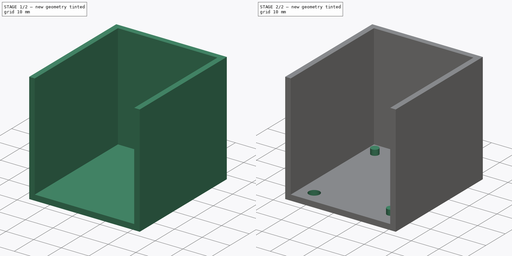
[diagram: build sequence overview — one tinted view per stage of 2, left to right]
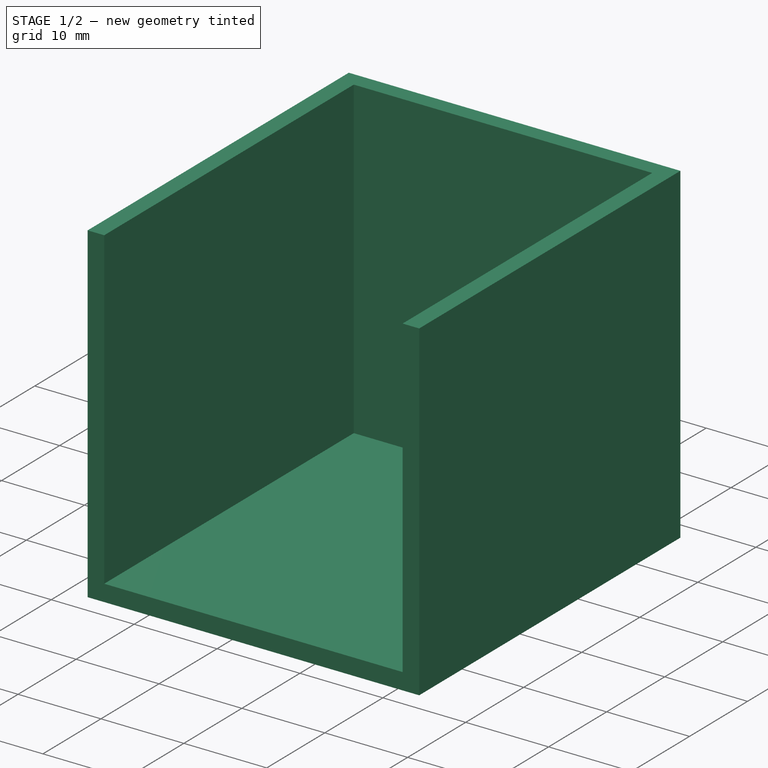
[diagram: stage 1 of 2 — iso view after this stage's code; geometry added in this stage tinted green]
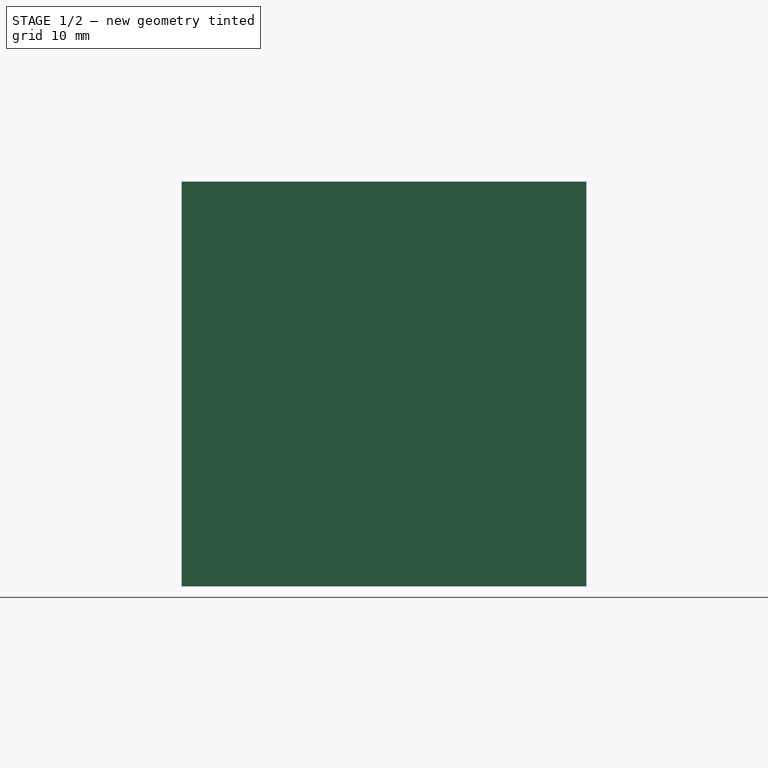
[diagram: stage 1 of 2 — front view after this stage's code; geometry added in this stage tinted green]
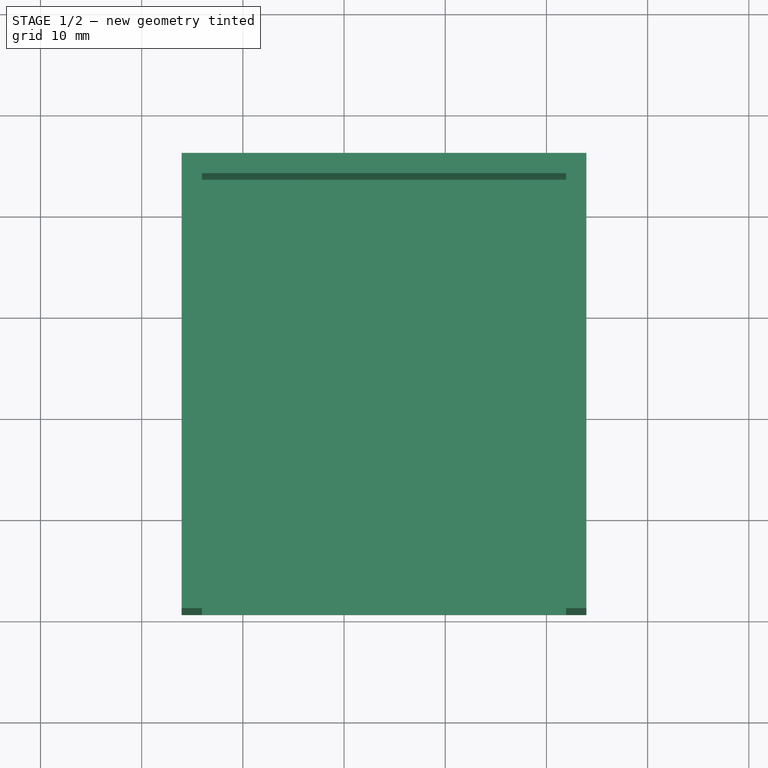
[diagram: stage 1 of 2 — top view after this stage's code; geometry added in this stage tinted green]
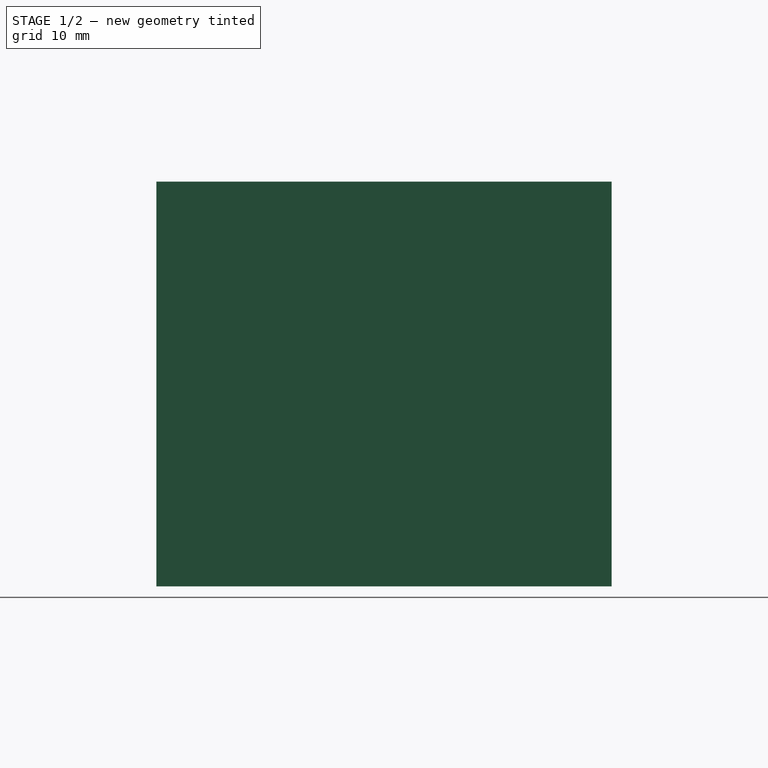
[diagram: stage 1 of 2 — right view after this stage's code; geometry added in this stage tinted green]
FCSTD DOCUMENT  (FreeCAD 0.16R6705 (Git))
Label: sensor_case
License: All rights reserved
LicenseURL: http://en.wikipedia.org/wiki/All_rights_reserved
objects: Sketcher::SketchObject×4, PartDesign::Pad×2, PartDesign::Pocket×2
note: 12 computed .brp shape members not serialized (recipe doc carries the construction recipe); baked Part::Feature solids carry a one-line shape summary decoded from their .brp

FEATURE [Sketcher::SketchObject] Sketch
  sketch-geometry (4):
    g0: LineSegment StartX=13.9465 StartY=45.6358 StartZ=0 EndX=53.9465 EndY=45.6358 EndZ=0
    g1: LineSegment StartX=53.9465 StartY=45.6358 StartZ=0 EndX=53.9465 EndY=0.635794 EndZ=0
    g2: LineSegment StartX=53.9465 StartY=0.635794 StartZ=0 EndX=13.9465 EndY=0.635794 EndZ=0
    g3: LineSegment StartX=13.9465 StartY=0.635794 StartZ=0 EndX=13.9465 EndY=45.6358 EndZ=0
  constraints (10):
    c: Coincident(g0,g1)
    c: Coincident(g1,g2)
    c: Coincident(g2,g3)
    c: Coincident(g3,g0)
    c: Horizontal(g0)
    c: Horizontal(g2)
    c: Vertical(g1)
    c: Vertical(g3)
    c: DistanceX(g0,g0) = 40
    c: DistanceY(g1,g1) = 45
FEATURE [PartDesign::Pad] Pad
  Length = 40
  Length2 = 100
  Sketch = -> Sketch
  Type = 0
FEATURE [Sketcher::SketchObject] Sketch001
  ExternalGeometry = -> [Pad]
  Placement = pos=(0,0,40) rot=(0,0,1;0rad)
  Support = -> Pad [Face6]
  sketch-geometry (4):
    g0: LineSegment StartX=15.9465 StartY=43.6358 StartZ=0 EndX=51.9465 EndY=43.6358 EndZ=0
    g1: LineSegment StartX=51.9465 StartY=43.6358 StartZ=0 EndX=51.9465 EndY=-2.42514 EndZ=0
    g2: LineSegment StartX=51.9465 StartY=-2.42514 StartZ=0 EndX=15.9465 EndY=-2.42514 EndZ=0
    g3: LineSegment StartX=15.9465 StartY=-2.42514 StartZ=0 EndX=15.9465 EndY=43.6358 EndZ=0
  constraints (11):
    c: Coincident(g0,g1)
    c: Coincident(g1,g2)
    c: Coincident(g2,g3)
    c: Coincident(g3,g0)
    c: Horizontal(g0)
    c: Horizontal(g2)
    c: Vertical(g1)
    c: Vertical(g3)
    c: DistanceY(g0,g-4) = 2
    c: DistanceX(g-4,g0) = 2
    c: DistanceX(g0,g-5) = 2
FEATURE [PartDesign::Pocket] Pocket
  Length = 38
  Sketch = -> Sketch001
  Type = 0
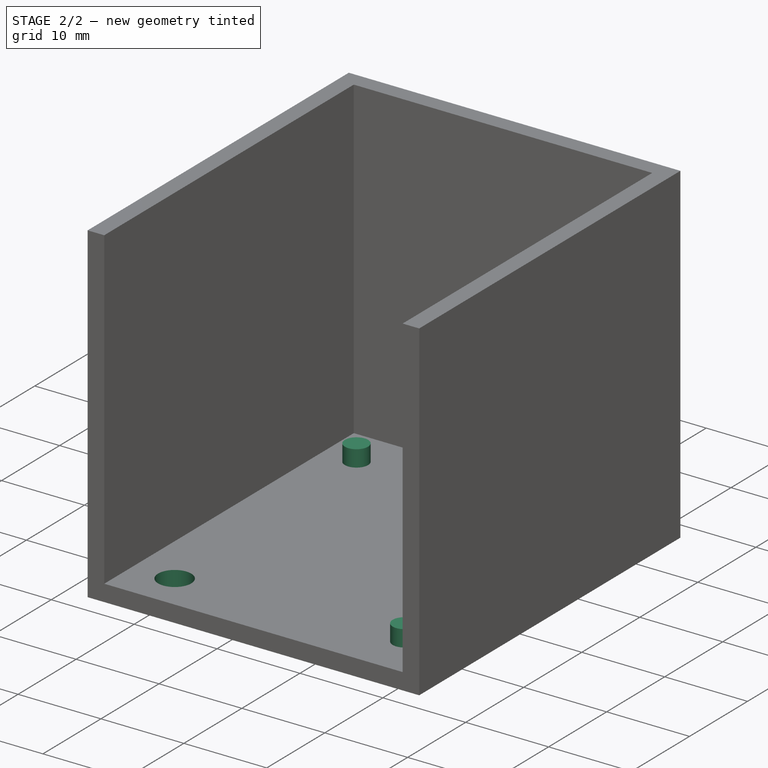
[diagram: stage 2 of 2 — iso view after this stage's code; geometry added in this stage tinted green]
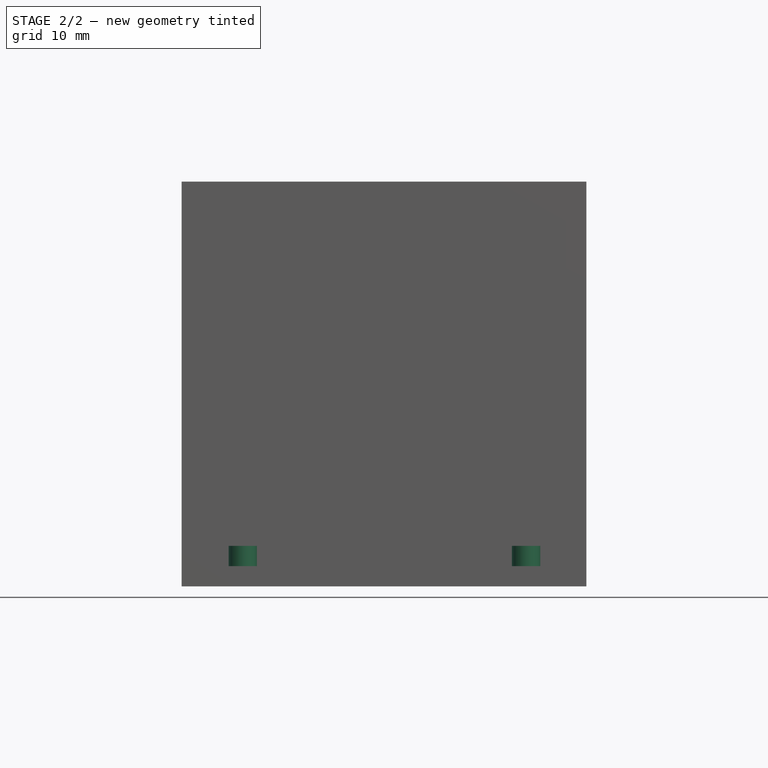
[diagram: stage 2 of 2 — front view after this stage's code; geometry added in this stage tinted green]
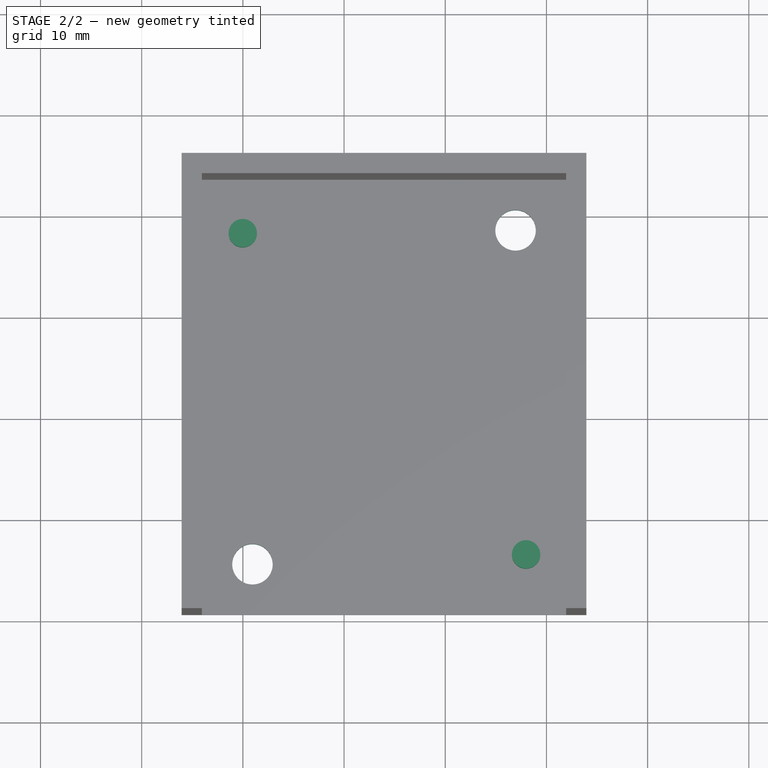
[diagram: stage 2 of 2 — top view after this stage's code; geometry added in this stage tinted green]
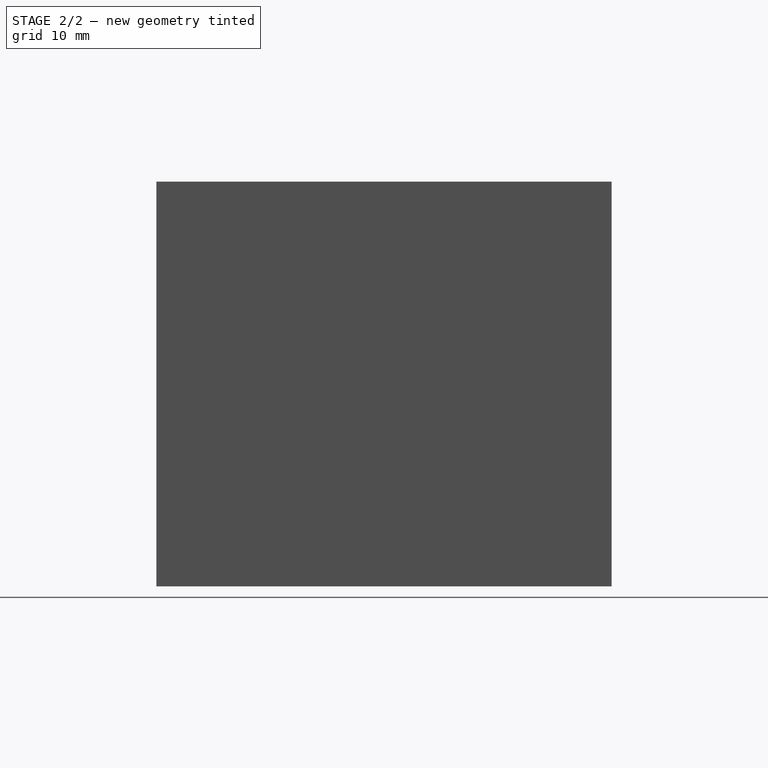
[diagram: stage 2 of 2 — right view after this stage's code; geometry added in this stage tinted green]
FEATURE [Sketcher::SketchObject] Sketch002
  Placement = pos=(0,0,2) rot=(0,0,1;0rad)
  Support = -> Pocket [Face10]
  sketch-geometry (2):
    g0: Circle CenterX=19.9875 CenterY=38.3297 CenterZ=0 NormalX=0 NormalY=0 NormalZ=1 Radius=1.4
    g1: Circle CenterX=47.9875 CenterY=6.57972 CenterZ=0 NormalX=0 NormalY=0 NormalZ=1 Radius=1.4
  constraints (4):
    c: Radius(g0) = 1.4
    c: Radius(g1) = 1.4
    c: DistanceX(g0,g1) = 28
    c: DistanceY(g1,g0) = 31.75
FEATURE [PartDesign::Pad] Pad001
  Length = 2
  Length2 = 100
  Sketch = -> Sketch002
  Type = 0
FEATURE [Sketcher::SketchObject] Sketch003
  ExternalGeometry = -> [Pad001]
  Placement = pos=(0,0,2) rot=(0,0,1;0rad)
  Support = -> Pad001 [Face10]
  sketch-geometry (2):
    g0: Circle CenterX=46.9465 CenterY=38.6358 CenterZ=0 NormalX=0 NormalY=0 NormalZ=1 Radius=2
    g1: Circle CenterX=20.9465 CenterY=5.63579 CenterZ=0 NormalX=0 NormalY=0 NormalZ=1 Radius=2
  constraints (6):
    c: Radius(g0) = 2
    c: Radius(g1) = 2
    c: DistanceX(g-7,g1) = 5
    c: DistanceY(g-7,g1) = 5
    c: DistanceX(g0,g-4) = 5
    c: DistanceY(g0,g-4) = 5
FEATURE [PartDesign::Pocket] Pocket001
  Length = 5
  Sketch = -> Sketch003
  Type = 0
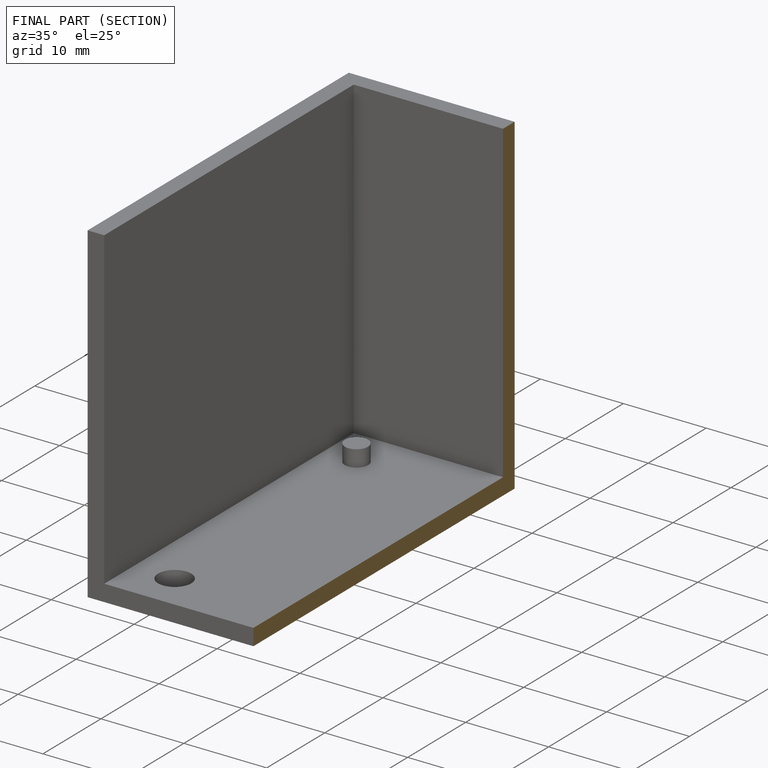
[diagram: finished part — half-section view (interior)]
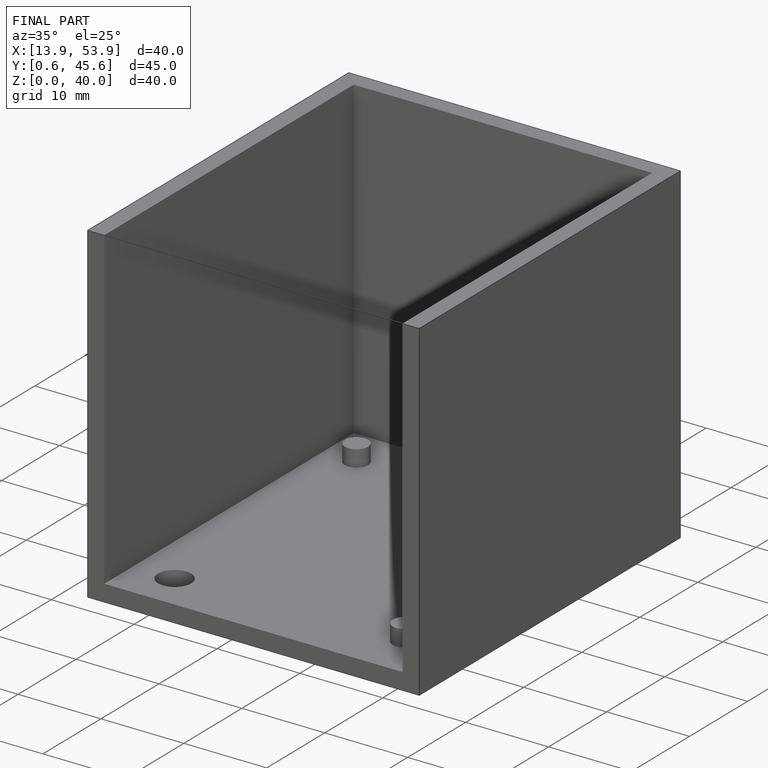
[diagram: finished part — iso view with bounding-box wireframe]
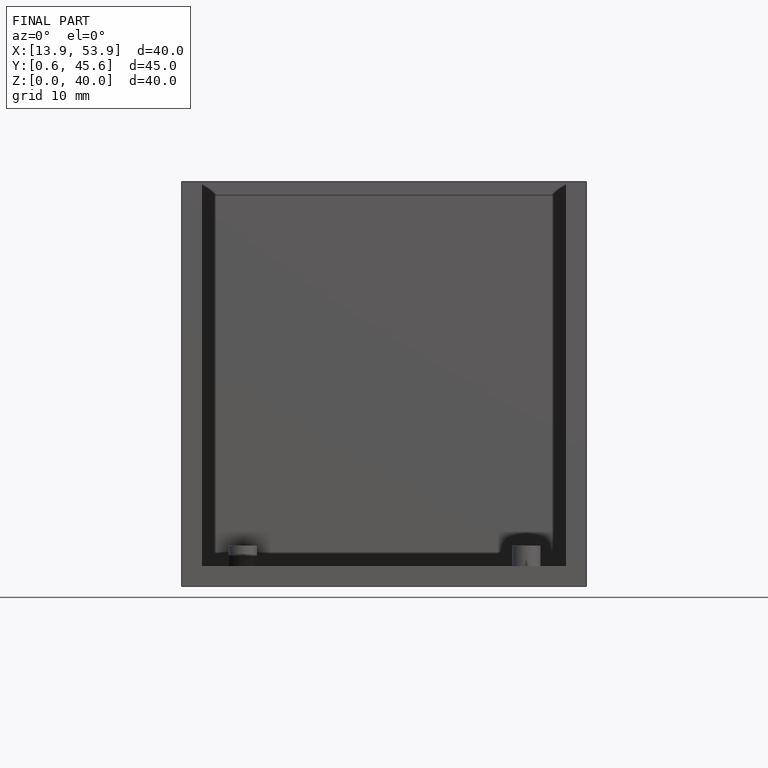
[diagram: finished part — front view with bounding-box wireframe]
